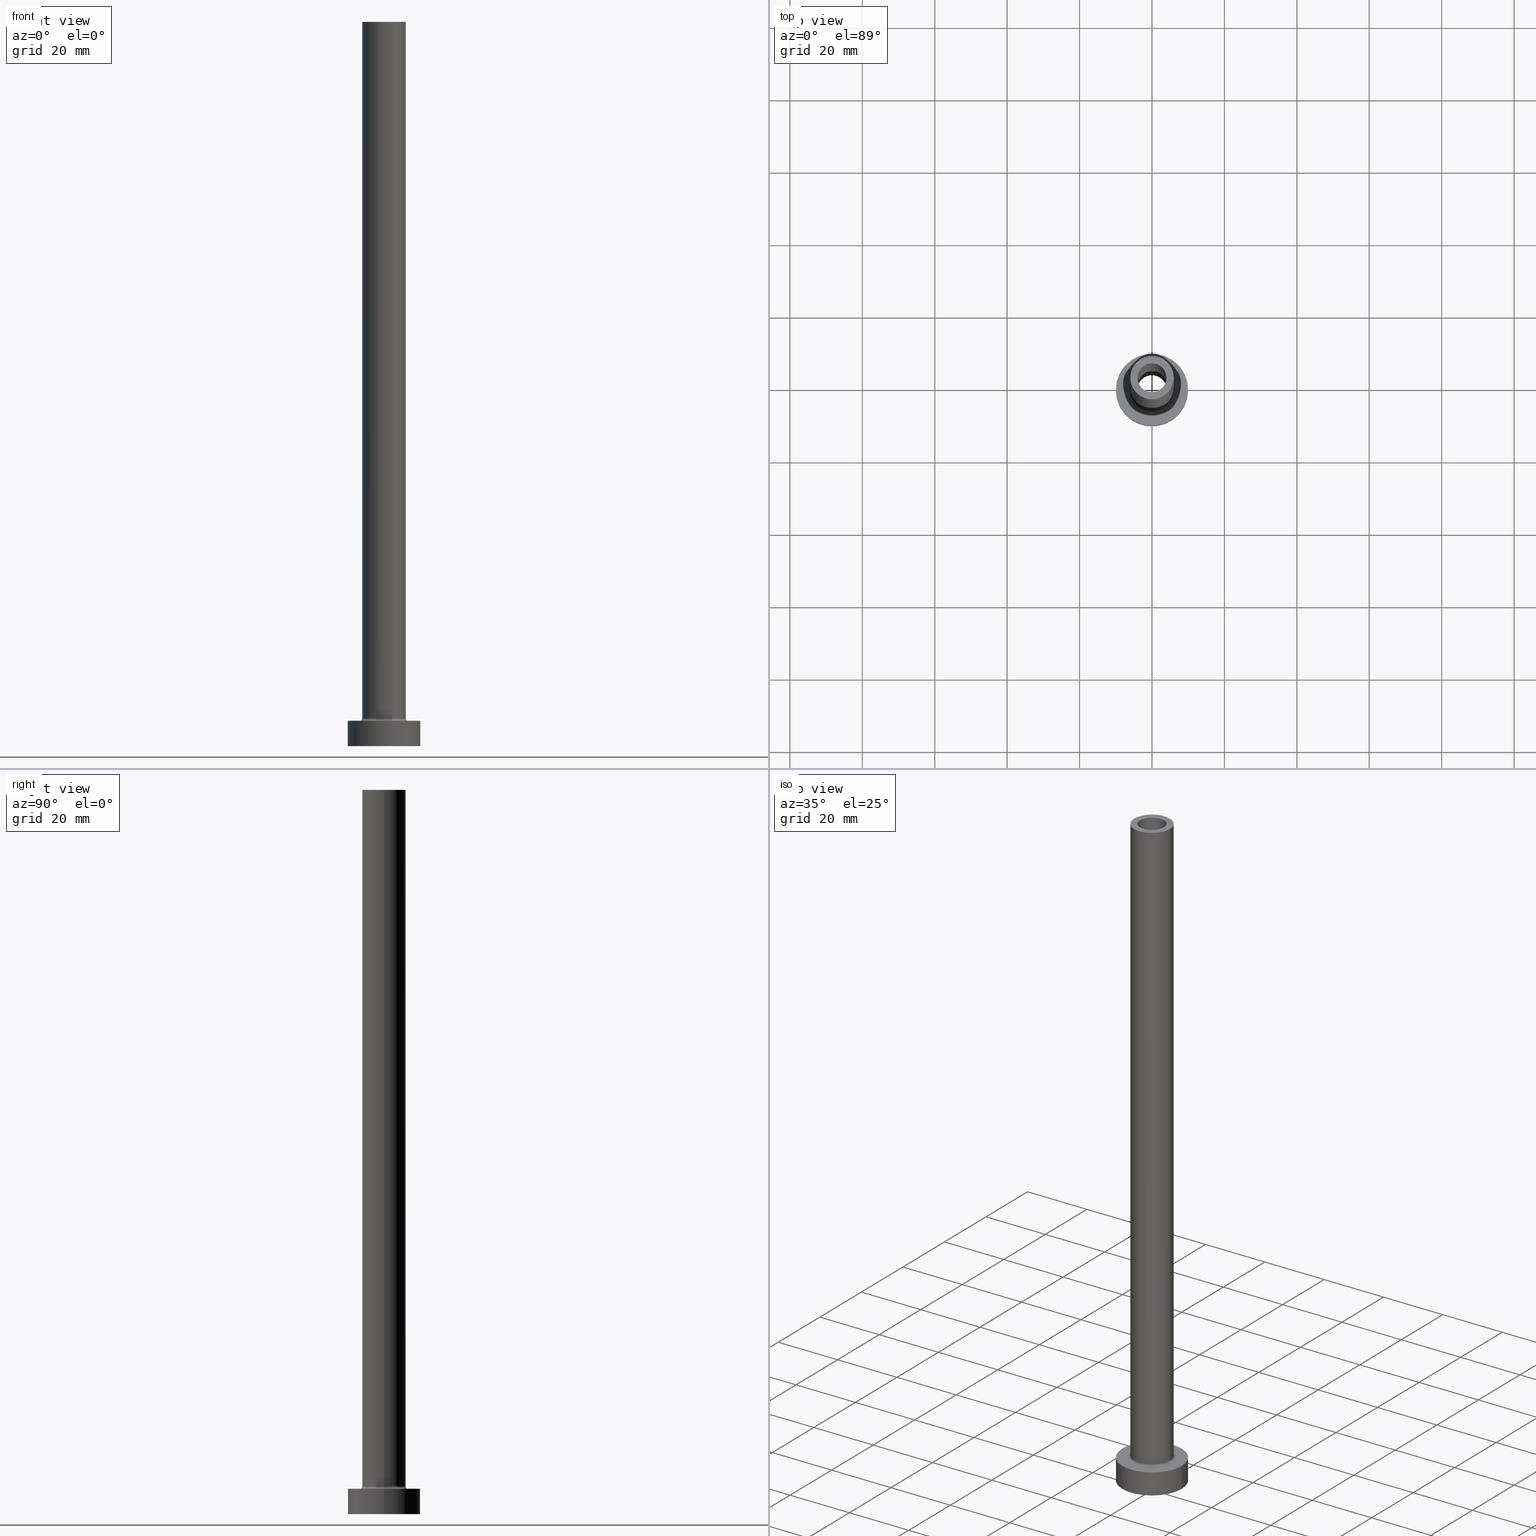
[diagram: canonical four-view strip — front | top / right | iso, engineering-drawing reading convention]
A machine part, canonical four-view strip (front | top / right | iso — engineering-drawing reading convention). The complete STEP part file that produces these views, byte-faithful:
ISO-10303-21;
HEADER;
FILE_DESCRIPTION (( 'STEP AP203' ),
    '1' );
FILE_NAME ('eb95.STEP',
    '2023-02-13T09:10:10',
    ( '' ),
    ( '' ),
    'SwSTEP 2.0',
    'SolidWorks 2019',
    '' );
FILE_SCHEMA (( 'CONFIG_CONTROL_DESIGN' ));
ENDSEC;

DATA;
#1 = DIRECTION ( 'NONE',  ( 0.000000000000000000, 0.000000000000000000, 1.000000000000000000 ) ) ;
#2 = ORIENTED_EDGE ( 'NONE', *, *, #436, .T. ) ;
#3 = DIRECTION ( 'NONE',  ( 0.000000000000000000, 0.000000000000000000, 1.000000000000000000 ) ) ;
#4 = VECTOR ( 'NONE', #361, 1000.000000000000000 ) ;
#5 = CIRCLE ( 'NONE', #447, 6.000000000000000888 ) ;
#6 = EDGE_CURVE ( 'NONE', #21, #392, #407, .T. ) ;
#7 = ADVANCED_FACE ( 'NONE', ( #209, #388 ), #171, .F. ) ;
#8 = PERSON_AND_ORGANIZATION ( #393, #293 ) ;
#9 = CARTESIAN_POINT ( 'NONE',  ( 6.000000000000000888, 7.347880794884120722E-16, 200.0000000000000000 ) ) ;
#10 = DIRECTION ( 'NONE',  ( 0.000000000000000000, 0.000000000000000000, 1.000000000000000000 ) ) ;
#11 = COORDINATED_UNIVERSAL_TIME_OFFSET ( 1, 0, .AHEAD. ) ;
#12 = CARTESIAN_POINT ( 'NONE',  ( 0.000000000000000000, 0.000000000000000000, 7.000000000000000000 ) ) ;
#13 = VECTOR ( 'NONE', #41, 1000.000000000000000 ) ;
#14 = APPROVAL_PERSON_ORGANIZATION ( #224, #345, #142 ) ;
#15 = CYLINDRICAL_SURFACE ( 'NONE', #123, 10.00000000000000000 ) ;
#16 = DIRECTION ( 'NONE',  ( 0.000000000000000000, 0.000000000000000000, 1.000000000000000000 ) ) ;
#17 = CARTESIAN_POINT ( 'NONE',  ( 10.00000000000000000, 1.224646799147353256E-15, 7.000000000000000000 ) ) ;
#18 = ORIENTED_EDGE ( 'NONE', *, *, #297, .F. ) ;
#19 = EDGE_CURVE ( 'NONE', #322, #100, #303, .T. ) ;
#20 = DIRECTION ( 'NONE',  ( -0.000000000000000000, -0.000000000000000000, -1.000000000000000000 ) ) ;
#21 = VERTEX_POINT ( 'NONE', #141 ) ;
#22 = ADVANCED_BREP_SHAPE_REPRESENTATION ( 'eb95', ( #227, #258 ), #177 ) ;
#23 = AXIS2_PLACEMENT_3D ( 'NONE', #248, #384, #242 ) ;
#24 = CARTESIAN_POINT ( 'NONE',  ( 0.000000000000000000, 0.000000000000000000, 0.000000000000000000 ) ) ;
#25 = ORIENTED_EDGE ( 'NONE', *, *, #367, .F. ) ;
#26 = FACE_OUTER_BOUND ( 'NONE', #61, .T. ) ;
#27 = ADVANCED_FACE ( 'NONE', ( #282, #425 ), #427, .T. ) ;
#28 = ORIENTED_EDGE ( 'NONE', *, *, #129, .F. ) ;
#29 = CIRCLE ( 'NONE', #439, 4.000000000000000000 ) ;
#30 = DIRECTION ( 'NONE',  ( 0.000000000000000000, 0.000000000000000000, 1.000000000000000000 ) ) ;
#31 = LINE ( 'NONE', #212, #355 ) ;
#32 = CARTESIAN_POINT ( 'NONE',  ( 0.000000000000000000, 0.000000000000000000, 7.700000000000012612 ) ) ;
#33 = AXIS2_PLACEMENT_3D ( 'NONE', #255, #403, #43 ) ;
#34 = SECURITY_CLASSIFICATION ( '', '', #108 ) ;
#35 = DIRECTION ( 'NONE',  ( 1.000000000000000000, 0.000000000000000000, 0.000000000000000000 ) ) ;
#36 = CYLINDRICAL_SURFACE ( 'NONE', #285, 4.150000000000000355 ) ;
#37 = EDGE_LOOP ( 'NONE', ( #461, #380, #51, #451 ) ) ;
#38 = CIRCLE ( 'NONE', #109, 6.700000000000001066 ) ;
#39 = ORIENTED_EDGE ( 'NONE', *, *, #138, .F. ) ;
#40 = EDGE_CURVE ( 'NONE', #392, #21, #237, .T. ) ;
#41 = DIRECTION ( 'NONE',  ( 0.000000000000000000, 0.000000000000000000, -1.000000000000000000 ) ) ;
#42 = CALENDAR_DATE ( 2023, 13, 2 ) ;
#43 = DIRECTION ( 'NONE',  ( 1.000000000000000000, 0.000000000000000000, 0.000000000000000000 ) ) ;
#44 = PERSON_AND_ORGANIZATION_ROLE ( 'creator' ) ;
#45 = CYLINDRICAL_SURFACE ( 'NONE', #66, 4.150000000000000355 ) ;
#46 = PERSON_AND_ORGANIZATION ( #393, #293 ) ;
#47 = CARTESIAN_POINT ( 'NONE',  ( 0.000000000000000000, 0.000000000000000000, 166.7379725676967439 ) ) ;
#48 = AXIS2_PLACEMENT_3D ( 'NONE', #73, #220, #434 ) ;
#49 = PLANE ( 'NONE',  #198 ) ;
#50 = LINE ( 'NONE', #60, #269 ) ;
#51 = ORIENTED_EDGE ( 'NONE', *, *, #239, .T. ) ;
#52 = APPROVAL ( #292, 'NEUR�EN�' ) ;
#53 = DIRECTION ( 'NONE',  ( 1.000000000000000000, 0.000000000000000000, 0.000000000000000000 ) ) ;
#54 = ORIENTED_EDGE ( 'NONE', *, *, #352, .T. ) ;
#55 = CARTESIAN_POINT ( 'NONE',  ( -6.000000000000000888, 0.000000000000000000, 200.0000000000000000 ) ) ;
#56 = EDGE_LOOP ( 'NONE', ( #267, #423, #444, #354 ) ) ;
#57 = EDGE_CURVE ( 'NONE', #371, #321, #31, .T. ) ;
#58 = DIRECTION ( 'NONE',  ( 0.000000000000000000, 0.000000000000000000, -1.000000000000000000 ) ) ;
#59 = ORIENTED_EDGE ( 'NONE', *, *, #19, .F. ) ;
#60 = CARTESIAN_POINT ( 'NONE',  ( 4.000000000000000000, 4.898587196589411843E-16, 200.0000000000000000 ) ) ;
#61 = EDGE_LOOP ( 'NONE', ( #413, #339 ) ) ;
#62 = LOCAL_TIME ( 10, 10, 10.00000000000000000, #222 ) ;
#63 =( LENGTH_UNIT ( ) NAMED_UNIT ( * ) SI_UNIT ( .MILLI., .METRE. ) );
#64 = DIRECTION ( 'NONE',  ( 1.000000000000000000, 0.000000000000000000, 0.000000000000000000 ) ) ;
#65 = EDGE_CURVE ( 'NONE', #356, #332, #387, .T. ) ;
#66 = AXIS2_PLACEMENT_3D ( 'NONE', #47, #225, #223 ) ;
#67 = ORIENTED_EDGE ( 'NONE', *, *, #97, .T. ) ;
#68 = CARTESIAN_POINT ( 'NONE',  ( 0.000000000000000000, 0.000000000000000000, 155.0000000000000284 ) ) ;
#69 = AXIS2_PLACEMENT_3D ( 'NONE', #395, #178, #324 ) ;
#70 = EDGE_LOOP ( 'NONE', ( #18, #300 ) ) ;
#71 = DIRECTION ( 'NONE',  ( 0.000000000000000000, 0.000000000000000000, 1.000000000000000000 ) ) ;
#72 = CALENDAR_DATE ( 2023, 13, 2 ) ;
#73 = CARTESIAN_POINT ( 'NONE',  ( 0.000000000000000000, 0.000000000000000000, 200.0000000000000000 ) ) ;
#74 = APPROVAL_DATE_TIME ( #433, #345 ) ;
#75 = CARTESIAN_POINT ( 'NONE',  ( 0.000000000000000000, 0.000000000000000000, 7.000000000000000000 ) ) ;
#76 = ADVANCED_FACE ( 'NONE', ( #107, #430 ), #49, .F. ) ;
#77 = APPROVAL_PERSON_ORGANIZATION ( #323, #111, #81 ) ;
#78 = ADVANCED_FACE ( 'NONE', ( #329 ), #45, .F. ) ;
#79 = COORDINATED_UNIVERSAL_TIME_OFFSET ( 1, 0, .AHEAD. ) ;
#80 = DIRECTION ( 'NONE',  ( 1.000000000000000000, 0.000000000000000000, 0.000000000000000000 ) ) ;
#81 = APPROVAL_ROLE ( '' ) ;
#82 = FACE_OUTER_BOUND ( 'NONE', #419, .T. ) ;
#83 = CIRCLE ( 'NONE', #243, 4.150000000000000355 ) ;
#84 = VECTOR ( 'NONE', #381, 1000.000000000000000 ) ;
#85 = ADVANCED_FACE ( 'NONE', ( #181 ), #365, .F. ) ;
#86 = DIRECTION ( 'NONE',  ( 1.000000000000000000, 0.000000000000000000, 0.000000000000000000 ) ) ;
#87 = ADVANCED_FACE ( 'NONE', ( #183 ), #110, .F. ) ;
#88 = CARTESIAN_POINT ( 'NONE',  ( 0.000000000000000000, 0.000000000000000000, 200.0000000000000000 ) ) ;
#89 = EDGE_LOOP ( 'NONE', ( #378, #348 ) ) ;
#90 = CARTESIAN_POINT ( 'NONE',  ( 6.000000000000000888, 7.347880794884120722E-16, 200.0000000000000000 ) ) ;
#91 = CARTESIAN_POINT ( 'NONE',  ( 0.000000000000000000, 0.000000000000000000, 0.000000000000000000 ) ) ;
#92 = EDGE_LOOP ( 'NONE', ( #335, #131, #173, #415 ) ) ;
#93 = FACE_OUTER_BOUND ( 'NONE', #166, .T. ) ;
#94 = ORIENTED_EDGE ( 'NONE', *, *, #19, .T. ) ;
#95 = FACE_OUTER_BOUND ( 'NONE', #121, .T. ) ;
#96 = ORIENTED_EDGE ( 'NONE', *, *, #417, .F. ) ;
#97 = EDGE_CURVE ( 'NONE', #332, #356, #38, .T. ) ;
#98 = ORIENTED_EDGE ( 'NONE', *, *, #279, .F. ) ;
#99 = PERSON_AND_ORGANIZATION ( #393, #293 ) ;
#100 = VERTEX_POINT ( 'NONE', #295 ) ;
#101 = CARTESIAN_POINT ( 'NONE',  ( 0.000000000000000000, 0.000000000000000000, 7.700000000000012612 ) ) ;
#102 = ORIENTED_EDGE ( 'NONE', *, *, #6, .F. ) ;
#103 = VERTEX_POINT ( 'NONE', #262 ) ;
#104 = PRODUCT ( 'eb95', 'eb95', '', ( #273 ) ) ;
#105 = CARTESIAN_POINT ( 'NONE',  ( -4.000000000000000000, 0.000000000000000000, 200.0000000000000000 ) ) ;
#106 = DATE_AND_TIME ( #42, #351 ) ;
#107 = FACE_BOUND ( 'NONE', #376, .T. ) ;
#108 = SECURITY_CLASSIFICATION_LEVEL ( 'unclassified' ) ;
#109 = AXIS2_PLACEMENT_3D ( 'NONE', #12, #325, #330 ) ;
#110 = CYLINDRICAL_SURFACE ( 'NONE', #416, 4.000000000000000000 ) ;
#111 = APPROVAL ( #254, 'NEUR�EN�' ) ;
#112 = TOROIDAL_SURFACE ( 'NONE', #277, 6.700000000000001066, 0.6999999999999999556 ) ;
#113 = PERSON_AND_ORGANIZATION_ROLE ( 'design_supplier' ) ;
#114 = DIRECTION ( 'NONE',  ( -0.000000000000000000, -0.000000000000000000, -1.000000000000000000 ) ) ;
#115 = DIRECTION ( 'NONE',  ( 0.000000000000000000, 0.000000000000000000, -1.000000000000000000 ) ) ;
#116 = CARTESIAN_POINT ( 'NONE',  ( 0.000000000000000000, 0.000000000000000000, 200.0000000000000000 ) ) ;
#117 = AXIS2_PLACEMENT_3D ( 'NONE', #266, #20, #443 ) ;
#118 = DIRECTION ( 'NONE',  ( 1.000000000000000000, 0.000000000000000000, 0.000000000000000000 ) ) ;
#119 = DIRECTION ( 'NONE',  ( -0.000000000000000000, -0.000000000000000000, -1.000000000000000000 ) ) ;
#120 = CC_DESIGN_PERSON_AND_ORGANIZATION_ASSIGNMENT ( #8, #217, ( #208 ) ) ;
#121 = EDGE_LOOP ( 'NONE', ( #94, #302, #54, #39 ) ) ;
#122 = DIRECTION ( 'NONE',  ( -1.000000000000000000, 0.000000000000000000, 0.000000000000000000 ) ) ;
#123 = AXIS2_PLACEMENT_3D ( 'NONE', #397, #366, #215 ) ;
#124 = DIRECTION ( 'NONE',  ( -0.000000000000000000, -0.000000000000000000, -1.000000000000000000 ) ) ;
#125 = VERTEX_POINT ( 'NONE', #404 ) ;
#126 = ADVANCED_FACE ( 'NONE', ( #148 ), #256, .F. ) ;
#127 = DIRECTION ( 'NONE',  ( 0.000000000000000000, 0.000000000000000000, 1.000000000000000000 ) ) ;
#128 = EDGE_LOOP ( 'NONE', ( #59, #96 ) ) ;
#129 = EDGE_CURVE ( 'NONE', #234, #197, #373, .T. ) ;
#130 = EDGE_CURVE ( 'NONE', #125, #371, #203, .T. ) ;
#131 = ORIENTED_EDGE ( 'NONE', *, *, #130, .F. ) ;
#132 = AXIS2_PLACEMENT_3D ( 'NONE', #88, #119, #336 ) ;
#133 = PERSON_AND_ORGANIZATION ( #393, #293 ) ;
#134 = ORIENTED_EDGE ( 'NONE', *, *, #417, .T. ) ;
#135 = CARTESIAN_POINT ( 'NONE',  ( 4.150000000000000355, 5.082284216461515156E-16, 166.7379725676967439 ) ) ;
#136 = DIRECTION ( 'NONE',  ( 0.000000000000000000, 0.000000000000000000, 1.000000000000000000 ) ) ;
#137 = ADVANCED_FACE ( 'NONE', ( #82 ), #15, .T. ) ;
#138 = EDGE_CURVE ( 'NONE', #322, #421, #358, .T. ) ;
#139 =( NAMED_UNIT ( * ) SI_UNIT ( $, .STERADIAN. ) SOLID_ANGLE_UNIT ( ) );
#140 = EDGE_LOOP ( 'NONE', ( #98, #240, #244, #246 ) ) ;
#141 = CARTESIAN_POINT ( 'NONE',  ( -6.000000000000000888, 0.000000000000000000, 7.700000000000012612 ) ) ;
#142 = APPROVAL_ROLE ( '' ) ;
#143 = LINE ( 'NONE', #288, #4 ) ;
#144 = CC_DESIGN_PERSON_AND_ORGANIZATION_ASSIGNMENT ( #260, #326, ( #34 ) ) ;
#145 = DIRECTION ( 'NONE',  ( 0.000000000000000000, 0.000000000000000000, 1.000000000000000000 ) ) ;
#146 = DATE_TIME_ROLE ( 'classification_date' ) ;
#147 = AXIS2_PLACEMENT_3D ( 'NONE', #294, #16, #296 ) ;
#148 = FACE_OUTER_BOUND ( 'NONE', #275, .T. ) ;
#149 = CC_DESIGN_APPROVAL ( #111, ( #34 ) ) ;
#150 = DIRECTION ( 'NONE',  ( -1.000000000000000000, 0.000000000000000000, 0.000000000000000000 ) ) ;
#151 = EDGE_CURVE ( 'NONE', #453, #446, #169, .T. ) ;
#152 = LINE ( 'NONE', #105, #13 ) ;
#153 = LINE ( 'NONE', #90, #176 ) ;
#154 = ORIENTED_EDGE ( 'NONE', *, *, #362, .F. ) ;
#155 = AXIS2_PLACEMENT_3D ( 'NONE', #24, #199, #190 ) ;
#156 = DIRECTION ( 'NONE',  ( -1.000000000000000000, 1.224646799147353454E-16, 0.000000000000000000 ) ) ;
#157 = ORIENTED_EDGE ( 'NONE', *, *, #6, .T. ) ;
#158 = CARTESIAN_POINT ( 'NONE',  ( -4.150000000000000355, 0.000000000000000000, 155.0000000000000284 ) ) ;
#159 = EDGE_LOOP ( 'NONE', ( #426, #134, #163, #310 ) ) ;
#160 = DIRECTION ( 'NONE',  ( -0.000000000000000000, -0.000000000000000000, -1.000000000000000000 ) ) ;
#161 = CIRCLE ( 'NONE', #204, 4.000000000000000000 ) ;
#162 = FACE_OUTER_BOUND ( 'NONE', #92, .T. ) ;
#163 = ORIENTED_EDGE ( 'NONE', *, *, #138, .T. ) ;
#164 = CC_DESIGN_PERSON_AND_ORGANIZATION_ASSIGNMENT ( #287, #113, ( #359 ) ) ;
#165 = LINE ( 'NONE', #135, #84 ) ;
#166 = EDGE_LOOP ( 'NONE', ( #168, #28, #193, #157 ) ) ;
#167 = APPLICATION_PROTOCOL_DEFINITION ( 'international standard', 'config_control_design', 1994, #459 ) ;
#168 = ORIENTED_EDGE ( 'NONE', *, *, #270, .F. ) ;
#169 = CIRCLE ( 'NONE', #291, 4.000000000000000000 ) ;
#170 = CC_DESIGN_DATE_AND_TIME_ASSIGNMENT ( #401, #146, ( #34 ) ) ;
#171 = PLANE ( 'NONE',  #450 ) ;
#172 = CARTESIAN_POINT ( 'NONE',  ( 0.000000000000000000, 0.000000000000000000, 155.0000000000000284 ) ) ;
#173 = ORIENTED_EDGE ( 'NONE', *, *, #313, .T. ) ;
#174 = ORIENTED_EDGE ( 'NONE', *, *, #313, .F. ) ;
#175 = APPROVAL_DATE_TIME ( #214, #52 ) ;
#176 = VECTOR ( 'NONE', #196, 1000.000000000000000 ) ;
#177 =( GEOMETRIC_REPRESENTATION_CONTEXT ( 3 ) GLOBAL_UNCERTAINTY_ASSIGNED_CONTEXT ( ( #307 ) ) GLOBAL_UNIT_ASSIGNED_CONTEXT ( ( #63, #211, #139 ) ) REPRESENTATION_CONTEXT ( 'NONE', 'WORKASPACE' ) );
#178 = DIRECTION ( 'NONE',  ( 0.000000000000000000, 0.000000000000000000, 1.000000000000000000 ) ) ;
#179 = EDGE_CURVE ( 'NONE', #286, #446, #152, .T. ) ;
#180 = SHAPE_DEFINITION_REPRESENTATION ( #316, #22 ) ;
#181 = FACE_OUTER_BOUND ( 'NONE', #140, .T. ) ;
#182 = APPROVAL_ROLE ( '' ) ;
#183 = FACE_OUTER_BOUND ( 'NONE', #56, .T. ) ;
#184 = APPLICATION_CONTEXT ( 'configuration controlled 3d designs of mechanical parts and assemblies' ) ;
#185 = DATE_TIME_ROLE ( 'creation_date' ) ;
#186 = EDGE_CURVE ( 'NONE', #446, #453, #432, .T. ) ;
#187 = CARTESIAN_POINT ( 'NONE',  ( 0.000000000000000000, 0.000000000000000000, 200.0000000000000000 ) ) ;
#188 = AXIS2_PLACEMENT_3D ( 'NONE', #418, #281, #349 ) ;
#189 = CARTESIAN_POINT ( 'NONE',  ( -4.150000000000000355, 0.000000000000000000, 166.7379725676967439 ) ) ;
#190 = DIRECTION ( 'NONE',  ( 1.000000000000000000, 0.000000000000000000, 0.000000000000000000 ) ) ;
#191 = ORIENTED_EDGE ( 'NONE', *, *, #129, .T. ) ;
#192 = DIRECTION ( 'NONE',  ( 1.000000000000000000, 0.000000000000000000, 0.000000000000000000 ) ) ;
#193 = ORIENTED_EDGE ( 'NONE', *, *, #201, .T. ) ;
#194 = CIRCLE ( 'NONE', #457, 4.150000000000000355 ) ;
#195 = CC_DESIGN_PERSON_AND_ORGANIZATION_ASSIGNMENT ( #46, #44, ( #359 ) ) ;
#196 = DIRECTION ( 'NONE',  ( -0.000000000000000000, -0.000000000000000000, -1.000000000000000000 ) ) ;
#197 = VERTEX_POINT ( 'NONE', #9 ) ;
#198 = AXIS2_PLACEMENT_3D ( 'NONE', #400, #145, #290 ) ;
#199 = DIRECTION ( 'NONE',  ( 0.000000000000000000, 0.000000000000000000, 1.000000000000000000 ) ) ;
#200 = CARTESIAN_POINT ( 'NONE',  ( 0.000000000000000000, 0.000000000000000000, 200.0000000000000000 ) ) ;
#201 = EDGE_CURVE ( 'NONE', #234, #21, #143, .T. ) ;
#202 = VERTEX_POINT ( 'NONE', #259 ) ;
#203 = CIRCLE ( 'NONE', #33, 10.00000000000000000 ) ;
#204 = AXIS2_PLACEMENT_3D ( 'NONE', #116, #406, #86 ) ;
#205 = CARTESIAN_POINT ( 'NONE',  ( 0.000000000000000000, 0.000000000000000000, 7.700000000000012612 ) ) ;
#206 = DIRECTION ( 'NONE',  ( 1.000000000000000000, 0.000000000000000000, 0.000000000000000000 ) ) ;
#207 = ORIENTED_EDGE ( 'NONE', *, *, #40, .T. ) ;
#208 = PRODUCT_DEFINITION ( 'NEZN�M�', '', #359, #405 ) ;
#209 = FACE_BOUND ( 'NONE', #89, .T. ) ;
#210 = CIRCLE ( 'NONE', #188, 10.00000000000000000 ) ;
#211 =( NAMED_UNIT ( * ) PLANE_ANGLE_UNIT ( ) SI_UNIT ( $, .RADIAN. ) );
#212 = CARTESIAN_POINT ( 'NONE',  ( 10.00000000000000000, 1.224646799147353256E-15, 7.000000000000000000 ) ) ;
#213 = DIRECTION ( 'NONE',  ( 1.000000000000000000, 0.000000000000000000, -0.000000000000000000 ) ) ;
#214 = DATE_AND_TIME ( #219, #62 ) ;
#215 = DIRECTION ( 'NONE',  ( -1.000000000000000000, 0.000000000000000000, 0.000000000000000000 ) ) ;
#216 = EDGE_CURVE ( 'NONE', #21, #332, #391, .T. ) ;
#217 = PERSON_AND_ORGANIZATION_ROLE ( 'creator' ) ;
#218 = DIRECTION ( 'NONE',  ( 0.000000000000000000, 0.000000000000000000, -1.000000000000000000 ) ) ;
#219 = CALENDAR_DATE ( 2023, 13, 2 ) ;
#220 = DIRECTION ( 'NONE',  ( 0.000000000000000000, 0.000000000000000000, 1.000000000000000000 ) ) ;
#221 = ADVANCED_FACE ( 'NONE', ( #162 ), #408, .T. ) ;
#222 = COORDINATED_UNIVERSAL_TIME_OFFSET ( 1, 0, .AHEAD. ) ;
#223 = DIRECTION ( 'NONE',  ( -1.000000000000000000, 0.000000000000000000, 0.000000000000000000 ) ) ;
#224 = PERSON_AND_ORGANIZATION ( #393, #293 ) ;
#225 = DIRECTION ( 'NONE',  ( 0.000000000000000000, 0.000000000000000000, -1.000000000000000000 ) ) ;
#226 = CIRCLE ( 'NONE', #235, 4.150000000000000355 ) ;
#227 = MANIFOLD_SOLID_BREP ( 'Odebrat vysunut�m4', #394 ) ;
#228 = CARTESIAN_POINT ( 'NONE',  ( 6.000000000000000888, 7.347880794884120722E-16, 7.700000000000012612 ) ) ;
#229 = AXIS2_PLACEMENT_3D ( 'NONE', #75, #431, #261 ) ;
#230 = DIRECTION ( 'NONE',  ( 1.000000000000000000, 0.000000000000000000, 0.000000000000000000 ) ) ;
#231 = ORIENTED_EDGE ( 'NONE', *, *, #239, .F. ) ;
#232 = ADVANCED_FACE ( 'NONE', ( #441 ), #379, .T. ) ;
#233 = CARTESIAN_POINT ( 'NONE',  ( -10.00000000000000000, 0.000000000000000000, 7.000000000000000000 ) ) ;
#234 = VERTEX_POINT ( 'NONE', #55 ) ;
#235 = AXIS2_PLACEMENT_3D ( 'NONE', #172, #353, #455 ) ;
#236 = ORIENTED_EDGE ( 'NONE', *, *, #436, .F. ) ;
#237 = CIRCLE ( 'NONE', #402, 6.000000000000000888 ) ;
#238 = CARTESIAN_POINT ( 'NONE',  ( -4.000000000000000000, 0.000000000000000000, 200.0000000000000000 ) ) ;
#239 = EDGE_CURVE ( 'NONE', #392, #356, #383, .T. ) ;
#240 = ORIENTED_EDGE ( 'NONE', *, *, #382, .T. ) ;
#241 = CARTESIAN_POINT ( 'NONE',  ( -4.150000000000000355, 0.000000000000000000, 0.000000000000000000 ) ) ;
#242 = DIRECTION ( 'NONE',  ( 1.000000000000000000, 0.000000000000000000, -0.000000000000000000 ) ) ;
#243 = AXIS2_PLACEMENT_3D ( 'NONE', #91, #268, #230 ) ;
#244 = ORIENTED_EDGE ( 'NONE', *, *, #179, .T. ) ;
#245 = CARTESIAN_POINT ( 'NONE',  ( 0.000000000000000000, 0.000000000000000000, 200.0000000000000000 ) ) ;
#246 = ORIENTED_EDGE ( 'NONE', *, *, #151, .F. ) ;
#247 = DIRECTION ( 'NONE',  ( 0.000000000000000000, 0.000000000000000000, 1.000000000000000000 ) ) ;
#248 = CARTESIAN_POINT ( 'NONE',  ( 0.000000000000000000, 0.000000000000000000, 200.0000000000000000 ) ) ;
#249 = LOCAL_TIME ( 10, 10, 10.00000000000000000, #79 ) ;
#250 = ORIENTED_EDGE ( 'NONE', *, *, #305, .F. ) ;
#251 = ADVANCED_FACE ( 'NONE', ( #93 ), #334, .T. ) ;
#252 = AXIS2_PLACEMENT_3D ( 'NONE', #68, #3, #35 ) ;
#253 = CARTESIAN_POINT ( 'NONE',  ( 0.000000000000000000, 0.000000000000000000, 155.0000000000000284 ) ) ;
#254 = APPROVAL_STATUS ( 'not_yet_approved' ) ;
#255 = CARTESIAN_POINT ( 'NONE',  ( 0.000000000000000000, 0.000000000000000000, 7.000000000000000000 ) ) ;
#256 = TOROIDAL_SURFACE ( 'NONE', #147, 6.700000000000001066, 0.6999999999999999556 ) ;
#257 = COORDINATED_UNIVERSAL_TIME_OFFSET ( 1, 0, .AHEAD. ) ;
#258 = AXIS2_PLACEMENT_3D ( 'NONE', #311, #127, #206 ) ;
#259 = CARTESIAN_POINT ( 'NONE',  ( 4.150000000000000355, 5.082284216461515156E-16, 0.000000000000000000 ) ) ;
#260 = PERSON_AND_ORGANIZATION ( #393, #293 ) ;
#261 = DIRECTION ( 'NONE',  ( 1.000000000000000000, 0.000000000000000000, 0.000000000000000000 ) ) ;
#262 = CARTESIAN_POINT ( 'NONE',  ( -10.00000000000000000, 0.000000000000000000, 0.000000000000000000 ) ) ;
#263 = AXIS2_PLACEMENT_3D ( 'NONE', #410, #265, #156 ) ;
#264 = PLANE ( 'NONE',  #456 ) ;
#265 = DIRECTION ( 'NONE',  ( 1.224646799147353207E-16, 1.000000000000000000, -0.000000000000000000 ) ) ;
#266 = CARTESIAN_POINT ( 'NONE',  ( 0.000000000000000000, 0.000000000000000000, 200.0000000000000000 ) ) ;
#267 = ORIENTED_EDGE ( 'NONE', *, *, #297, .T. ) ;
#268 = DIRECTION ( 'NONE',  ( -0.000000000000000000, -0.000000000000000000, -1.000000000000000000 ) ) ;
#269 = VECTOR ( 'NONE', #58, 1000.000000000000000 ) ;
#270 = EDGE_CURVE ( 'NONE', #197, #392, #153, .T. ) ;
#271 = FACE_BOUND ( 'NONE', #449, .T. ) ;
#272 = ORIENTED_EDGE ( 'NONE', *, *, #65, .T. ) ;
#273 = MECHANICAL_CONTEXT ( 'NONE', #459, 'mechanical' ) ;
#274 = DIRECTION ( 'NONE',  ( -1.000000000000000000, 0.000000000000000000, 0.000000000000000000 ) ) ;
#275 = EDGE_LOOP ( 'NONE', ( #102, #317, #458, #231 ) ) ;
#276 = AXIS2_PLACEMENT_3D ( 'NONE', #368, #375, #377 ) ;
#277 = AXIS2_PLACEMENT_3D ( 'NONE', #101, #247, #452 ) ;
#278 = PERSON_AND_ORGANIZATION_ROLE ( 'design_owner' ) ;
#279 = EDGE_CURVE ( 'NONE', #280, #453, #50, .T. ) ;
#280 = VERTEX_POINT ( 'NONE', #308 ) ;
#281 = DIRECTION ( 'NONE',  ( 0.000000000000000000, 0.000000000000000000, 1.000000000000000000 ) ) ;
#282 = FACE_BOUND ( 'NONE', #70, .T. ) ;
#283 = CARTESIAN_POINT ( 'NONE',  ( 0.000000000000000000, 0.000000000000000000, 155.0000000000000284 ) ) ;
#284 = CIRCLE ( 'NONE', #155, 10.00000000000000000 ) ;
#285 = AXIS2_PLACEMENT_3D ( 'NONE', #320, #343, #274 ) ;
#286 = VERTEX_POINT ( 'NONE', #238 ) ;
#287 = PERSON_AND_ORGANIZATION ( #393, #293 ) ;
#288 = CARTESIAN_POINT ( 'NONE',  ( -6.000000000000000888, 0.000000000000000000, 200.0000000000000000 ) ) ;
#289 = CC_DESIGN_PERSON_AND_ORGANIZATION_ASSIGNMENT ( #133, #278, ( #104 ) ) ;
#290 = DIRECTION ( 'NONE',  ( 1.000000000000000000, 0.000000000000000000, -0.000000000000000000 ) ) ;
#291 = AXIS2_PLACEMENT_3D ( 'NONE', #253, #10, #80 ) ;
#292 = APPROVAL_STATUS ( 'not_yet_approved' ) ;
#293 = ORGANIZATION ( 'NEUR�EN�', 'NEUR�EN�', '' ) ;
#294 = CARTESIAN_POINT ( 'NONE',  ( 0.000000000000000000, 0.000000000000000000, 7.700000000000012612 ) ) ;
#295 = CARTESIAN_POINT ( 'NONE',  ( 4.150000000000000355, 5.082284216461515156E-16, 155.0000000000000284 ) ) ;
#296 = DIRECTION ( 'NONE',  ( 1.000000000000000000, 0.000000000000000000, 0.000000000000000000 ) ) ;
#297 = EDGE_CURVE ( 'NONE', #286, #280, #29, .T. ) ;
#298 = CARTESIAN_POINT ( 'NONE',  ( -6.700000000000001066, 8.205133554287267548E-16, 7.000000000000006217 ) ) ;
#299 = APPROVAL_PERSON_ORGANIZATION ( #99, #52, #182 ) ;
#300 = ORIENTED_EDGE ( 'NONE', *, *, #382, .F. ) ;
#301 = CARTESIAN_POINT ( 'NONE',  ( 0.000000000000000000, 0.000000000000000000, 7.000000000000000000 ) ) ;
#302 = ORIENTED_EDGE ( 'NONE', *, *, #442, .T. ) ;
#303 = CIRCLE ( 'NONE', #252, 4.150000000000000355 ) ;
#304 = CARTESIAN_POINT ( 'NONE',  ( 10.00000000000000000, 1.224646799147353256E-15, 0.000000000000000000 ) ) ;
#305 = EDGE_CURVE ( 'NONE', #103, #321, #284, .T. ) ;
#306 = ORIENTED_EDGE ( 'NONE', *, *, #409, .F. ) ;
#307 = UNCERTAINTY_MEASURE_WITH_UNIT (LENGTH_MEASURE( 1.000000000000000082E-05 ), #63, 'distance_accuracy_value', 'NONE');
#308 = CARTESIAN_POINT ( 'NONE',  ( 4.000000000000000000, 4.898587196589411843E-16, 200.0000000000000000 ) ) ;
#309 = AXIS2_PLACEMENT_3D ( 'NONE', #301, #445, #122 ) ;
#310 = ORIENTED_EDGE ( 'NONE', *, *, #367, .T. ) ;
#311 = CARTESIAN_POINT ( 'NONE',  ( 0.000000000000000000, 0.000000000000000000, 0.000000000000000000 ) ) ;
#312 = ORIENTED_EDGE ( 'NONE', *, *, #270, .T. ) ;
#313 = EDGE_CURVE ( 'NONE', #125, #103, #414, .T. ) ;
#314 = CARTESIAN_POINT ( 'NONE',  ( -4.000000000000000000, 0.000000000000000000, 155.0000000000000284 ) ) ;
#315 = ORIENTED_EDGE ( 'NONE', *, *, #352, .F. ) ;
#316 = PRODUCT_DEFINITION_SHAPE ( 'NONE', 'NONE',  #208 ) ;
#317 = ORIENTED_EDGE ( 'NONE', *, *, #216, .T. ) ;
#318 = EDGE_LOOP ( 'NONE', ( #191, #2 ) ) ;
#319 = AXIS2_PLACEMENT_3D ( 'NONE', #187, #364, #437 ) ;
#320 = CARTESIAN_POINT ( 'NONE',  ( 0.000000000000000000, 0.000000000000000000, 166.7379725676967439 ) ) ;
#321 = VERTEX_POINT ( 'NONE', #304 ) ;
#322 = VERTEX_POINT ( 'NONE', #158 ) ;
#323 = PERSON_AND_ORGANIZATION ( #393, #293 ) ;
#324 = DIRECTION ( 'NONE',  ( 1.000000000000000000, 0.000000000000000000, 0.000000000000000000 ) ) ;
#325 = DIRECTION ( 'NONE',  ( -0.000000000000000000, -0.000000000000000000, -1.000000000000000000 ) ) ;
#326 = PERSON_AND_ORGANIZATION_ROLE ( 'classification_officer' ) ;
#327 = CARTESIAN_POINT ( 'NONE',  ( 0.000000000000000000, 0.000000000000000000, 200.0000000000000000 ) ) ;
#328 = VECTOR ( 'NONE', #218, 1000.000000000000000 ) ;
#329 = FACE_OUTER_BOUND ( 'NONE', #159, .T. ) ;
#330 = DIRECTION ( 'NONE',  ( 1.000000000000000000, 0.000000000000000000, 0.000000000000000000 ) ) ;
#331 = CARTESIAN_POINT ( 'NONE',  ( 0.000000000000000000, 0.000000000000000000, 7.000000000000000000 ) ) ;
#332 = VERTEX_POINT ( 'NONE', #298 ) ;
#333 = VECTOR ( 'NONE', #160, 1000.000000000000000 ) ;
#334 = CYLINDRICAL_SURFACE ( 'NONE', #132, 6.000000000000000888 ) ;
#335 = ORIENTED_EDGE ( 'NONE', *, *, #57, .F. ) ;
#336 = DIRECTION ( 'NONE',  ( -1.000000000000000000, 0.000000000000000000, 0.000000000000000000 ) ) ;
#337 = EDGE_LOOP ( 'NONE', ( #236, #312, #207, #386 ) ) ;
#338 = CARTESIAN_POINT ( 'NONE',  ( 0.000000000000000000, 0.000000000000000000, 0.000000000000000000 ) ) ;
#339 = ORIENTED_EDGE ( 'NONE', *, *, #362, .T. ) ;
#340 = DIRECTION ( 'NONE',  ( 0.000000000000000000, 0.000000000000000000, 1.000000000000000000 ) ) ;
#341 = ORIENTED_EDGE ( 'NONE', *, *, #57, .T. ) ;
#342 = LOCAL_TIME ( 10, 10, 10.00000000000000000, #11 ) ;
#343 = DIRECTION ( 'NONE',  ( 0.000000000000000000, 0.000000000000000000, -1.000000000000000000 ) ) ;
#344 = DIRECTION ( 'NONE',  ( 0.000000000000000000, 0.000000000000000000, 1.000000000000000000 ) ) ;
#345 = APPROVAL ( #396, 'NEUR�EN�' ) ;
#346 = AXIS2_PLACEMENT_3D ( 'NONE', #32, #71, #64 ) ;
#347 = FACE_OUTER_BOUND ( 'NONE', #37, .T. ) ;
#348 = ORIENTED_EDGE ( 'NONE', *, *, #151, .T. ) ;
#349 = DIRECTION ( 'NONE',  ( 1.000000000000000000, 0.000000000000000000, 0.000000000000000000 ) ) ;
#350 = EDGE_LOOP ( 'NONE', ( #250, #306 ) ) ;
#351 = LOCAL_TIME ( 10, 10, 10.00000000000000000, #429 ) ;
#352 = EDGE_CURVE ( 'NONE', #202, #421, #83, .T. ) ;
#353 = DIRECTION ( 'NONE',  ( 0.000000000000000000, 0.000000000000000000, 1.000000000000000000 ) ) ;
#354 = ORIENTED_EDGE ( 'NONE', *, *, #179, .F. ) ;
#355 = VECTOR ( 'NONE', #114, 1000.000000000000000 ) ;
#356 = VERTEX_POINT ( 'NONE', #370 ) ;
#357 = CALENDAR_DATE ( 2023, 13, 2 ) ;
#358 = LINE ( 'NONE', #189, #328 ) ;
#359 = PRODUCT_DEFINITION_FORMATION_WITH_SPECIFIED_SOURCE ( 'LIBOVOLN�', '', #104, .NOT_KNOWN. ) ;
#360 = DATE_AND_TIME ( #357, #249 ) ;
#361 = DIRECTION ( 'NONE',  ( -0.000000000000000000, -0.000000000000000000, -1.000000000000000000 ) ) ;
#362 = EDGE_CURVE ( 'NONE', #371, #125, #420, .T. ) ;
#363 = CALENDAR_DATE ( 2023, 13, 2 ) ;
#364 = DIRECTION ( 'NONE',  ( 0.000000000000000000, 0.000000000000000000, -1.000000000000000000 ) ) ;
#365 = CYLINDRICAL_SURFACE ( 'NONE', #319, 4.000000000000000000 ) ;
#366 = DIRECTION ( 'NONE',  ( -0.000000000000000000, -0.000000000000000000, -1.000000000000000000 ) ) ;
#367 = EDGE_CURVE ( 'NONE', #421, #202, #194, .T. ) ;
#368 = CARTESIAN_POINT ( 'NONE',  ( 6.700000000000001066, 0.000000000000000000, 7.700000000000012612 ) ) ;
#369 = ORIENTED_EDGE ( 'NONE', *, *, #409, .T. ) ;
#370 = CARTESIAN_POINT ( 'NONE',  ( 6.700000000000001066, 0.000000000000000000, 7.000000000000006217 ) ) ;
#371 = VERTEX_POINT ( 'NONE', #17 ) ;
#372 = ADVANCED_FACE ( 'NONE', ( #271, #26 ), #264, .T. ) ;
#373 = CIRCLE ( 'NONE', #48, 6.000000000000000888 ) ;
#374 = LOCAL_TIME ( 10, 10, 10.00000000000000000, #257 ) ;
#375 = DIRECTION ( 'NONE',  ( 0.000000000000000000, -1.000000000000000000, 0.000000000000000000 ) ) ;
#376 = EDGE_LOOP ( 'NONE', ( #25, #315 ) ) ;
#377 = DIRECTION ( 'NONE',  ( 0.000000000000000000, 0.000000000000000000, -1.000000000000000000 ) ) ;
#378 = ORIENTED_EDGE ( 'NONE', *, *, #186, .T. ) ;
#379 = CYLINDRICAL_SURFACE ( 'NONE', #117, 6.000000000000000888 ) ;
#380 = ORIENTED_EDGE ( 'NONE', *, *, #40, .F. ) ;
#381 = DIRECTION ( 'NONE',  ( 0.000000000000000000, 0.000000000000000000, -1.000000000000000000 ) ) ;
#382 = EDGE_CURVE ( 'NONE', #280, #286, #161, .T. ) ;
#383 = CIRCLE ( 'NONE', #276, 0.7000000000000000666 ) ;
#384 = DIRECTION ( 'NONE',  ( 0.000000000000000000, 0.000000000000000000, 1.000000000000000000 ) ) ;
#385 = CC_DESIGN_APPROVAL ( #52, ( #208 ) ) ;
#386 = ORIENTED_EDGE ( 'NONE', *, *, #201, .F. ) ;
#387 = CIRCLE ( 'NONE', #229, 6.700000000000001066 ) ;
#388 = FACE_OUTER_BOUND ( 'NONE', #128, .T. ) ;
#389 = PRODUCT_RELATED_PRODUCT_CATEGORY ( 'detail', '', ( #104 ) ) ;
#390 = DIRECTION ( 'NONE',  ( 1.000000000000000000, 0.000000000000000000, 0.000000000000000000 ) ) ;
#391 = CIRCLE ( 'NONE', #263, 0.7000000000000000666 ) ;
#392 = VERTEX_POINT ( 'NONE', #228 ) ;
#393 = PERSON ( 'NEUR�EN�', 'NEUR�EN�', 'NEUR�EN�', ('NEUR�EN�'), ('NEUR�EN�'), ('NEUR�EN�') ) ;
#394 = CLOSED_SHELL ( 'NONE', ( #87, #435, #126, #232, #137, #221, #372, #76, #251, #27, #454, #78, #7, #85 ) ) ;
#395 = CARTESIAN_POINT ( 'NONE',  ( 0.000000000000000000, 0.000000000000000000, 155.0000000000000284 ) ) ;
#396 = APPROVAL_STATUS ( 'not_yet_approved' ) ;
#397 = CARTESIAN_POINT ( 'NONE',  ( 0.000000000000000000, 0.000000000000000000, 7.000000000000000000 ) ) ;
#398 = AXIS2_PLACEMENT_3D ( 'NONE', #331, #340, #192 ) ;
#399 = APPROVAL_DATE_TIME ( #106, #111 ) ;
#400 = CARTESIAN_POINT ( 'NONE',  ( 0.000000000000000000, 0.000000000000000000, 0.000000000000000000 ) ) ;
#401 = DATE_AND_TIME ( #363, #342 ) ;
#402 = AXIS2_PLACEMENT_3D ( 'NONE', #205, #344, #390 ) ;
#403 = DIRECTION ( 'NONE',  ( 0.000000000000000000, 0.000000000000000000, 1.000000000000000000 ) ) ;
#404 = CARTESIAN_POINT ( 'NONE',  ( -10.00000000000000000, 0.000000000000000000, 7.000000000000000000 ) ) ;
#405 = DESIGN_CONTEXT ( 'detailed design', #184, 'design' ) ;
#406 = DIRECTION ( 'NONE',  ( 0.000000000000000000, 0.000000000000000000, 1.000000000000000000 ) ) ;
#407 = CIRCLE ( 'NONE', #346, 6.000000000000000888 ) ;
#408 = CYLINDRICAL_SURFACE ( 'NONE', #309, 10.00000000000000000 ) ;
#409 = EDGE_CURVE ( 'NONE', #321, #103, #210, .T. ) ;
#410 = CARTESIAN_POINT ( 'NONE',  ( -6.700000000000001066, 8.205133554287267548E-16, 7.700000000000012612 ) ) ;
#411 = CC_DESIGN_SECURITY_CLASSIFICATION ( #34, ( #359 ) ) ;
#412 = DIRECTION ( 'NONE',  ( 0.000000000000000000, 0.000000000000000000, 1.000000000000000000 ) ) ;
#413 = ORIENTED_EDGE ( 'NONE', *, *, #130, .T. ) ;
#414 = LINE ( 'NONE', #233, #333 ) ;
#415 = ORIENTED_EDGE ( 'NONE', *, *, #305, .T. ) ;
#416 = AXIS2_PLACEMENT_3D ( 'NONE', #327, #115, #150 ) ;
#417 = EDGE_CURVE ( 'NONE', #100, #322, #226, .T. ) ;
#418 = CARTESIAN_POINT ( 'NONE',  ( 0.000000000000000000, 0.000000000000000000, 0.000000000000000000 ) ) ;
#419 = EDGE_LOOP ( 'NONE', ( #154, #341, #369, #174 ) ) ;
#420 = CIRCLE ( 'NONE', #398, 10.00000000000000000 ) ;
#421 = VERTEX_POINT ( 'NONE', #241 ) ;
#422 = APPLICATION_PROTOCOL_DEFINITION ( 'international standard', 'config_control_design', 1994, #184 ) ;
#423 = ORIENTED_EDGE ( 'NONE', *, *, #279, .T. ) ;
#424 = CARTESIAN_POINT ( 'NONE',  ( 4.000000000000000000, 4.898587196589411843E-16, 155.0000000000000284 ) ) ;
#425 = FACE_OUTER_BOUND ( 'NONE', #318, .T. ) ;
#426 = ORIENTED_EDGE ( 'NONE', *, *, #442, .F. ) ;
#427 = PLANE ( 'NONE',  #23 ) ;
#428 = CC_DESIGN_DATE_AND_TIME_ASSIGNMENT ( #360, #185, ( #208 ) ) ;
#429 = COORDINATED_UNIVERSAL_TIME_OFFSET ( 1, 0, .AHEAD. ) ;
#430 = FACE_OUTER_BOUND ( 'NONE', #350, .T. ) ;
#431 = DIRECTION ( 'NONE',  ( -0.000000000000000000, -0.000000000000000000, -1.000000000000000000 ) ) ;
#432 = CIRCLE ( 'NONE', #69, 4.000000000000000000 ) ;
#433 = DATE_AND_TIME ( #72, #374 ) ;
#434 = DIRECTION ( 'NONE',  ( 1.000000000000000000, 0.000000000000000000, 0.000000000000000000 ) ) ;
#435 = ADVANCED_FACE ( 'NONE', ( #95 ), #36, .F. ) ;
#436 = EDGE_CURVE ( 'NONE', #197, #234, #5, .T. ) ;
#437 = DIRECTION ( 'NONE',  ( -1.000000000000000000, 0.000000000000000000, 0.000000000000000000 ) ) ;
#438 = DIRECTION ( 'NONE',  ( 1.000000000000000000, 0.000000000000000000, -0.000000000000000000 ) ) ;
#439 = AXIS2_PLACEMENT_3D ( 'NONE', #200, #412, #118 ) ;
#440 = CC_DESIGN_APPROVAL ( #345, ( #359 ) ) ;
#441 = FACE_OUTER_BOUND ( 'NONE', #337, .T. ) ;
#442 = EDGE_CURVE ( 'NONE', #100, #202, #165, .T. ) ;
#443 = DIRECTION ( 'NONE',  ( -1.000000000000000000, 0.000000000000000000, 0.000000000000000000 ) ) ;
#444 = ORIENTED_EDGE ( 'NONE', *, *, #186, .F. ) ;
#445 = DIRECTION ( 'NONE',  ( -0.000000000000000000, -0.000000000000000000, -1.000000000000000000 ) ) ;
#446 = VERTEX_POINT ( 'NONE', #314 ) ;
#447 = AXIS2_PLACEMENT_3D ( 'NONE', #245, #1, #460 ) ;
#448 = CARTESIAN_POINT ( 'NONE',  ( 0.000000000000000000, 0.000000000000000000, 7.000000000000000000 ) ) ;
#449 = EDGE_LOOP ( 'NONE', ( #272, #67 ) ) ;
#450 = AXIS2_PLACEMENT_3D ( 'NONE', #283, #136, #213 ) ;
#451 = ORIENTED_EDGE ( 'NONE', *, *, #97, .F. ) ;
#452 = DIRECTION ( 'NONE',  ( 1.000000000000000000, 0.000000000000000000, 0.000000000000000000 ) ) ;
#453 = VERTEX_POINT ( 'NONE', #424 ) ;
#454 = ADVANCED_FACE ( 'NONE', ( #347 ), #112, .F. ) ;
#455 = DIRECTION ( 'NONE',  ( 1.000000000000000000, 0.000000000000000000, 0.000000000000000000 ) ) ;
#456 = AXIS2_PLACEMENT_3D ( 'NONE', #448, #30, #438 ) ;
#457 = AXIS2_PLACEMENT_3D ( 'NONE', #338, #124, #53 ) ;
#458 = ORIENTED_EDGE ( 'NONE', *, *, #65, .F. ) ;
#459 = APPLICATION_CONTEXT ( 'configuration controlled 3d designs of mechanical parts and assemblies' ) ;
#460 = DIRECTION ( 'NONE',  ( 1.000000000000000000, 0.000000000000000000, 0.000000000000000000 ) ) ;
#461 = ORIENTED_EDGE ( 'NONE', *, *, #216, .F. ) ;
ENDSEC;
END-ISO-10303-21;
